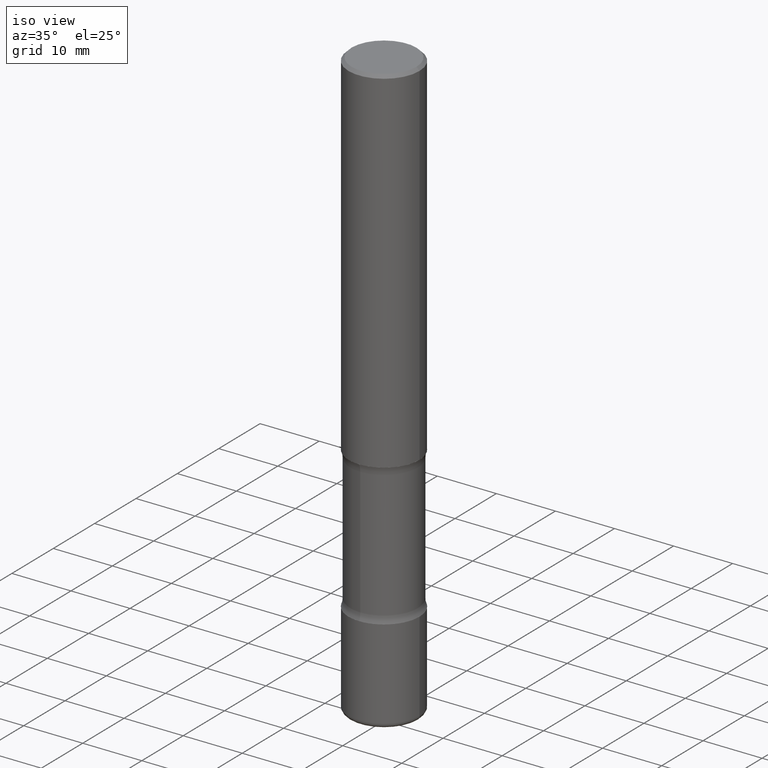
[diagram: clean part render]
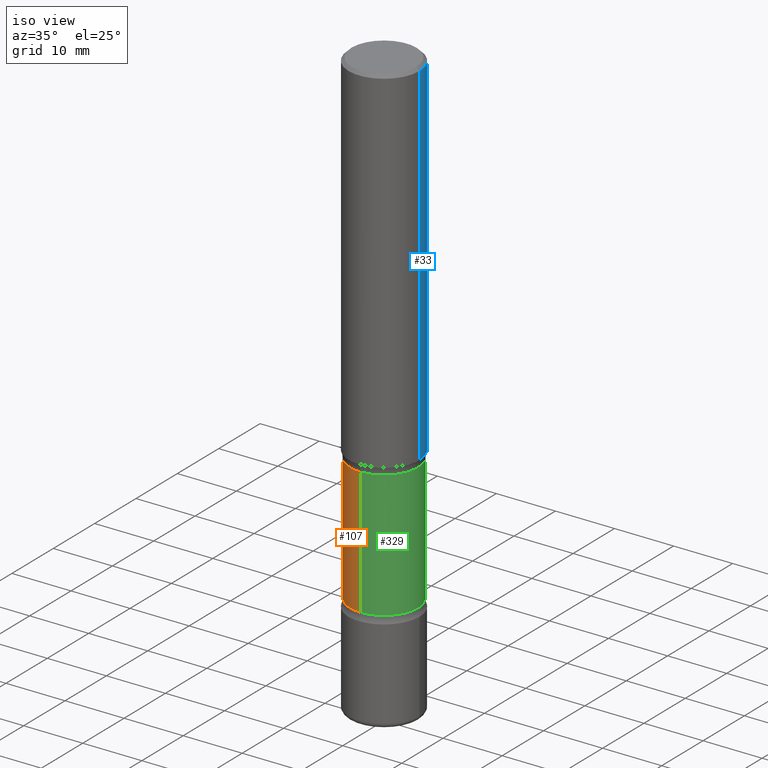
[diagram: same view with three faces highlighted in distinct colors, each labeled with its STEP entity id]
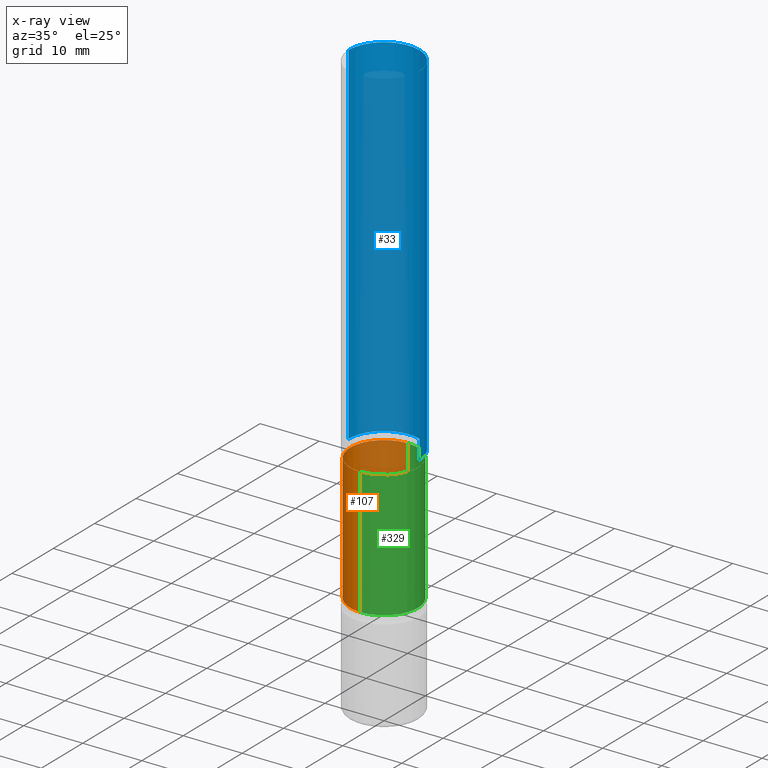
[diagram: x-ray of the same camera — body ghosted, the three highlighted faces saturated]
A machine part, iso view with three faces highlighted in distinct colors.
The next image is the same camera in x-ray (body ghosted, the three faces saturated) — at least one of them is partly hidden behind the body in this view.
Their STEP definitions:

[orange] entity #107 — the highlighted cylindrical surface (partial cylindrical patch) has radius 5.7404 mm, axis along (0, -0, -1).
#9 = ORIENTED_EDGE ( 'NONE', *, *, #227, .F. ) ;
#17 = ORIENTED_EDGE ( 'NONE', *, *, #474, .T. ) ;
#26 = EDGE_CURVE ( 'NONE', #230, #211, #202, .T. ) ;
#34 = CYLINDRICAL_SURFACE ( 'NONE', #524, 0.2260000000000000897 ) ;
#45 = LINE ( 'NONE', #389, #279 ) ;
#107 = ADVANCED_FACE ( 'NONE', ( #249 ), #34, .T. ) ;
#116 = DIRECTION ( 'NONE',  ( 6.982962677686265133E-15, 1.000000000000000000, -2.417564596163064317E-15 ) ) ;
#119 = DIRECTION ( 'NONE',  ( 2.576736035233696868E-29, -3.303499195578914139E-15, -1.000000000000000000 ) ) ;
#120 = DIRECTION ( 'NONE',  ( 6.982962677686265133E-15, 1.000000000000000000, -2.417564596163063922E-15 ) ) ;
#122 = CARTESIAN_POINT ( 'NONE',  ( -1.585461087284920754E-15, -0.2260000000000114417, -3.257643352317407537 ) ) ;
#125 = CARTESIAN_POINT ( 'NONE',  ( 9.710495917528571107E-29, -1.362755207898332391E-14, -3.937000000000000277 ) ) ;
#144 = CIRCLE ( 'NONE', #168, 0.2260000000000001730 ) ;
#153 = CARTESIAN_POINT ( 'NONE',  ( 7.959973162669273732E-29, -1.138329793985269342E-14, -3.257643352317407981 ) ) ;
#163 = CARTESIAN_POINT ( 'NONE',  ( -1.550472547496269736E-15, -0.2260000000000137177, -3.936999999999999389 ) ) ;
#168 = AXIS2_PLACEMENT_3D ( 'NONE', #266, #183, #359 ) ;
#170 = CARTESIAN_POINT ( 'NONE',  ( 1.578149565157176094E-15, 0.2259999999999886822, -3.257643352317408869 ) ) ;
#183 = DIRECTION ( 'NONE',  ( 2.576736035233696868E-29, -3.303499195578914139E-15, -1.000000000000000000 ) ) ;
#191 = ORIENTED_EDGE ( 'NONE', *, *, #26, .F. ) ;
#202 = CIRCLE ( 'NONE', #363, 0.2260000000000000620 ) ;
#211 = VERTEX_POINT ( 'NONE', #170 ) ;
#226 = VERTEX_POINT ( 'NONE', #374 ) ;
#227 = EDGE_CURVE ( 'NONE', #226, #230, #253, .T. ) ;
#230 = VERTEX_POINT ( 'NONE', #122 ) ;
#249 = FACE_OUTER_BOUND ( 'NONE', #361, .T. ) ;
#253 = LINE ( 'NONE', #163, #306 ) ;
#266 = CARTESIAN_POINT ( 'NONE',  ( 5.780088735508136904E-29, -8.588581541621122709E-15, -2.411656647682591803 ) ) ;
#279 = VECTOR ( 'NONE', #376, 39.37007874015748143 ) ;
#297 = VERTEX_POINT ( 'NONE', #401 ) ;
#306 = VECTOR ( 'NONE', #333, 39.37007874015748143 ) ;
#333 = DIRECTION ( 'NONE',  ( 2.576736035233696868E-29, -3.303499195578913745E-15, -1.000000000000000000 ) ) ;
#359 = DIRECTION ( 'NONE',  ( 6.982962677686265133E-15, 1.000000000000000000, -3.626346894244594700E-15 ) ) ;
#361 = EDGE_LOOP ( 'NONE', ( #9, #428, #17, #191 ) ) ;
#363 = AXIS2_PLACEMENT_3D ( 'NONE', #153, #119, #116 ) ;
#374 = CARTESIAN_POINT ( 'NONE',  ( -1.585461087284945603E-15, -0.2260000000000087772, -2.411656647682590915 ) ) ;
#376 = DIRECTION ( 'NONE',  ( 2.576736035233696868E-29, -3.303499195578913745E-15, -1.000000000000000000 ) ) ;
#389 = CARTESIAN_POINT ( 'NONE',  ( 1.578149565157193646E-15, 0.2259999999999864617, -3.937000000000000721 ) ) ;
#401 = CARTESIAN_POINT ( 'NONE',  ( 1.578149565157154794E-15, 0.2259999999999915687, -2.411656647682592691 ) ) ;
#421 = DIRECTION ( 'NONE',  ( 2.576736035233696868E-29, -3.303499195578914139E-15, -1.000000000000000000 ) ) ;
#428 = ORIENTED_EDGE ( 'NONE', *, *, #447, .T. ) ;
#447 = EDGE_CURVE ( 'NONE', #226, #297, #144, .T. ) ;
#474 = EDGE_CURVE ( 'NONE', #297, #211, #45, .T. ) ;
#524 = AXIS2_PLACEMENT_3D ( 'NONE', #125, #421, #120 ) ;

[blue] entity #33 — the highlighted cylindrical surface (partial cylindrical patch) has radius 5.9995 mm, axis along (-0, 0, 1).
#7 = CARTESIAN_POINT ( 'NONE',  ( 5.776686413970529753E-29, -8.247577218615279626E-15, -2.362200000000000077 ) ) ;
#15 = DIRECTION ( 'NONE',  ( -2.445468806185136597E-29, 3.491481338843145583E-15, 1.000000000000000000 ) ) ;
#25 = DIRECTION ( 'NONE',  ( 1.000000000000000000, -6.982962677686266711E-15, 0.000000000000000000 ) ) ;
#30 = EDGE_CURVE ( 'NONE', #89, #278, #479, .T. ) ;
#33 = ADVANCED_FACE ( 'NONE', ( #503 ), #491, .T. ) ;
#37 = VECTOR ( 'NONE', #380, 39.37007874015748143 ) ;
#40 = CARTESIAN_POINT ( 'NONE',  ( 0.2361999999999999378, -1.690279253850498377E-15, -0.02000000000000006981 ) ) ;
#68 = DIRECTION ( 'NONE',  ( -2.445468806185136597E-29, 3.491481338843145583E-15, 1.000000000000000000 ) ) ;
#82 = LINE ( 'NONE', #251, #37 ) ;
#89 = VERTEX_POINT ( 'NONE', #40 ) ;
#115 = VECTOR ( 'NONE', #135, 39.37007874015748143 ) ;
#123 = AXIS2_PLACEMENT_3D ( 'NONE', #280, #68, #25 ) ;
#124 = AXIS2_PLACEMENT_3D ( 'NONE', #7, #15, #346 ) ;
#135 = DIRECTION ( 'NONE',  ( -2.445468806185136877E-29, 3.491481338843145188E-15, 1.000000000000000000 ) ) ;
#167 = CIRCLE ( 'NONE', #124, 0.2362000000000001598 ) ;
#185 = EDGE_CURVE ( 'NONE', #420, #89, #82, .T. ) ;
#197 = ORIENTED_EDGE ( 'NONE', *, *, #30, .F. ) ;
#209 = AXIS2_PLACEMENT_3D ( 'NONE', #320, #243, #495 ) ;
#232 = EDGE_CURVE ( 'NONE', #388, #278, #385, .T. ) ;
#233 = CARTESIAN_POINT ( 'NONE',  ( -0.2361999999999999378, 1.579546157692632635E-15, -0.02000000000000006981 ) ) ;
#243 = DIRECTION ( 'NONE',  ( -2.445468806185136597E-29, 3.491481338843145583E-15, 1.000000000000000000 ) ) ;
#248 = ORIENTED_EDGE ( 'NONE', *, *, #185, .F. ) ;
#251 = CARTESIAN_POINT ( 'NONE',  ( 0.2362000000000000766, -1.649375784469496722E-15, 1.151752954443000368E-29 ) ) ;
#278 = VERTEX_POINT ( 'NONE', #233 ) ;
#280 = CARTESIAN_POINT ( 'NONE',  ( 4.890937612370289799E-31, -6.982962677686315028E-17, -0.02000000000000006981 ) ) ;
#310 = EDGE_CURVE ( 'NONE', #420, #388, #167, .T. ) ;
#320 = CARTESIAN_POINT ( 'NONE',  ( 0.000000000000000000, 0.000000000000000000, 0.000000000000000000 ) ) ;
#346 = DIRECTION ( 'NONE',  ( 1.000000000000000000, -6.982962677686268288E-15, 0.000000000000000000 ) ) ;
#365 = CARTESIAN_POINT ( 'NONE',  ( 0.2362000000000001598, -9.896953003084776152E-15, -2.362200000000000077 ) ) ;
#380 = DIRECTION ( 'NONE',  ( -2.445468806185136877E-29, 3.491481338843145188E-15, 1.000000000000000000 ) ) ;
#385 = LINE ( 'NONE', #429, #115 ) ;
#388 = VERTEX_POINT ( 'NONE', #449 ) ;
#408 = ORIENTED_EDGE ( 'NONE', *, *, #310, .T. ) ;
#420 = VERTEX_POINT ( 'NONE', #365 ) ;
#429 = CARTESIAN_POINT ( 'NONE',  ( -0.2362000000000000766, 1.678301941865357183E-15, -1.161852468318209177E-29 ) ) ;
#435 = ORIENTED_EDGE ( 'NONE', *, *, #232, .T. ) ;
#449 = CARTESIAN_POINT ( 'NONE',  ( -0.2362000000000001598, -2.480401480830711124E-15, -2.362200000000000077 ) ) ;
#472 = EDGE_LOOP ( 'NONE', ( #408, #435, #197, #248 ) ) ;
#479 = CIRCLE ( 'NONE', #123, 0.2361999999999999378 ) ;
#491 = CYLINDRICAL_SURFACE ( 'NONE', #209, 0.2362000000000000766 ) ;
#495 = DIRECTION ( 'NONE',  ( 1.000000000000000000, -6.982962677686266711E-15, 4.876176775795935793E-29 ) ) ;
#503 = FACE_OUTER_BOUND ( 'NONE', #472, .T. ) ;

[green] entity #329 — the highlighted cylindrical surface (partial cylindrical patch) has radius 5.7404 mm, axis along (0, -0, -1).
#1 = AXIS2_PLACEMENT_3D ( 'NONE', #309, #432, #483 ) ;
#45 = LINE ( 'NONE', #389, #279 ) ;
#53 = ORIENTED_EDGE ( 'NONE', *, *, #474, .F. ) ;
#57 = EDGE_CURVE ( 'NONE', #211, #230, #151, .T. ) ;
#59 = ORIENTED_EDGE ( 'NONE', *, *, #378, .T. ) ;
#79 = DIRECTION ( 'NONE',  ( 6.982962677686265133E-15, 1.000000000000000000, -2.417564596163064317E-15 ) ) ;
#91 = FACE_OUTER_BOUND ( 'NONE', #452, .T. ) ;
#122 = CARTESIAN_POINT ( 'NONE',  ( -1.585461087284920754E-15, -0.2260000000000114417, -3.257643352317407537 ) ) ;
#133 = ORIENTED_EDGE ( 'NONE', *, *, #57, .F. ) ;
#151 = CIRCLE ( 'NONE', #500, 0.2260000000000000620 ) ;
#163 = CARTESIAN_POINT ( 'NONE',  ( -1.550472547496269736E-15, -0.2260000000000137177, -3.936999999999999389 ) ) ;
#170 = CARTESIAN_POINT ( 'NONE',  ( 1.578149565157176094E-15, 0.2259999999999886822, -3.257643352317408869 ) ) ;
#196 = CIRCLE ( 'NONE', #469, 0.2260000000000001730 ) ;
#211 = VERTEX_POINT ( 'NONE', #170 ) ;
#226 = VERTEX_POINT ( 'NONE', #374 ) ;
#227 = EDGE_CURVE ( 'NONE', #226, #230, #253, .T. ) ;
#230 = VERTEX_POINT ( 'NONE', #122 ) ;
#253 = LINE ( 'NONE', #163, #306 ) ;
#261 = CYLINDRICAL_SURFACE ( 'NONE', #1, 0.2260000000000000897 ) ;
#276 = CARTESIAN_POINT ( 'NONE',  ( 7.959973162669273732E-29, -1.138329793985269342E-14, -3.257643352317407981 ) ) ;
#279 = VECTOR ( 'NONE', #376, 39.37007874015748143 ) ;
#297 = VERTEX_POINT ( 'NONE', #401 ) ;
#306 = VECTOR ( 'NONE', #333, 39.37007874015748143 ) ;
#309 = CARTESIAN_POINT ( 'NONE',  ( 9.710495917528571107E-29, -1.362755207898332391E-14, -3.937000000000000277 ) ) ;
#329 = ADVANCED_FACE ( 'NONE', ( #91 ), #261, .T. ) ;
#333 = DIRECTION ( 'NONE',  ( 2.576736035233696868E-29, -3.303499195578913745E-15, -1.000000000000000000 ) ) ;
#367 = CARTESIAN_POINT ( 'NONE',  ( 5.780088735508136904E-29, -8.588581541621122709E-15, -2.411656647682591803 ) ) ;
#374 = CARTESIAN_POINT ( 'NONE',  ( -1.585461087284945603E-15, -0.2260000000000087772, -2.411656647682590915 ) ) ;
#376 = DIRECTION ( 'NONE',  ( 2.576736035233696868E-29, -3.303499195578913745E-15, -1.000000000000000000 ) ) ;
#378 = EDGE_CURVE ( 'NONE', #297, #226, #196, .T. ) ;
#382 = DIRECTION ( 'NONE',  ( 2.576736035233696868E-29, -3.303499195578914139E-15, -1.000000000000000000 ) ) ;
#389 = CARTESIAN_POINT ( 'NONE',  ( 1.578149565157193646E-15, 0.2259999999999864617, -3.937000000000000721 ) ) ;
#401 = CARTESIAN_POINT ( 'NONE',  ( 1.578149565157154794E-15, 0.2259999999999915687, -2.411656647682592691 ) ) ;
#412 = DIRECTION ( 'NONE',  ( 6.982962677686265133E-15, 1.000000000000000000, -3.626346894244594700E-15 ) ) ;
#432 = DIRECTION ( 'NONE',  ( 2.576736035233696868E-29, -3.303499195578914139E-15, -1.000000000000000000 ) ) ;
#452 = EDGE_LOOP ( 'NONE', ( #59, #528, #133, #53 ) ) ;
#469 = AXIS2_PLACEMENT_3D ( 'NONE', #367, #541, #412 ) ;
#474 = EDGE_CURVE ( 'NONE', #297, #211, #45, .T. ) ;
#483 = DIRECTION ( 'NONE',  ( 6.982962677686265133E-15, 1.000000000000000000, -2.417564596163063922E-15 ) ) ;
#500 = AXIS2_PLACEMENT_3D ( 'NONE', #276, #382, #79 ) ;
#528 = ORIENTED_EDGE ( 'NONE', *, *, #227, .T. ) ;
#541 = DIRECTION ( 'NONE',  ( 2.576736035233696868E-29, -3.303499195578914139E-15, -1.000000000000000000 ) ) ;